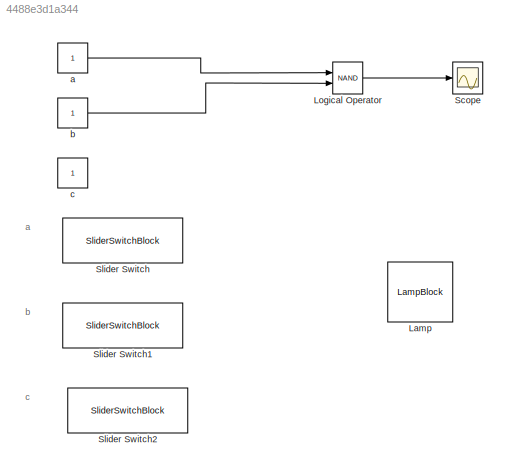
MODEL slx_4488e3d1a344
KIND model
CONFIG AbsTol = auto
CONFIG EnableMultiTasking = off
CONFIG FixedStep = 1e-3
CONFIG MaxStep = auto
CONFIG MinStep = auto
CONFIG RelTol = 1e-3
CONFIG SampleTimeConstraint = Unconstrained
CONFIG Solver = FixedStepDiscrete
CONFIG SolverName = FixedStepDiscrete
CONFIG StartTime = 0.0
CONFIG StopTime = 40
BLOCK [LampBlock] Lamp
  WebBlockId = 4
BLOCK [Logic] Logical Operator
  AllPortsSameDT = off
  IconShape = distinctive
  Operator = NAND
  OutDataTypeStr = boolean
  Ports = [2, 1]
BLOCK [Scope] Scope
  Floating = off
  NumInputPorts = 1
  Ports = [1]
  ScopeSpecificationString = Simulink.scopes.TimeScopeBlockCfg('CurrentConfiguration', extmgr.ConfigurationSet(extmgr.Configuration('Core','General UI',true),extmgr.Configuration('Core','Source UI',true),extmgr.Configuration('Sources','WiredSimulink',true),extmgr.Configuration('Visuals','Time Domain',true),extmgr.Configuration('Tools','Plot Navigation',true),extmgr.Configuration('Tools','Measurements',true)),'Version','2018b'...<+1ch>
BLOCK [SliderSwitchBlock] Slider Switch
  WebBlockId = 2
BLOCK [SliderSwitchBlock] Slider Switch1
  WebBlockId = 14
BLOCK [SliderSwitchBlock] Slider Switch2
  WebBlockId = 15
BLOCK [Constant] a
BLOCK [Constant] b
BLOCK [Constant] c
ANNOTATION (root): a
ANNOTATION (root): b
ANNOTATION (root): c
LINE Logical Operator:1 -> Scope:1
LINE a:1 -> Logical Operator:1
LINE b:1 -> Logical Operator:2
